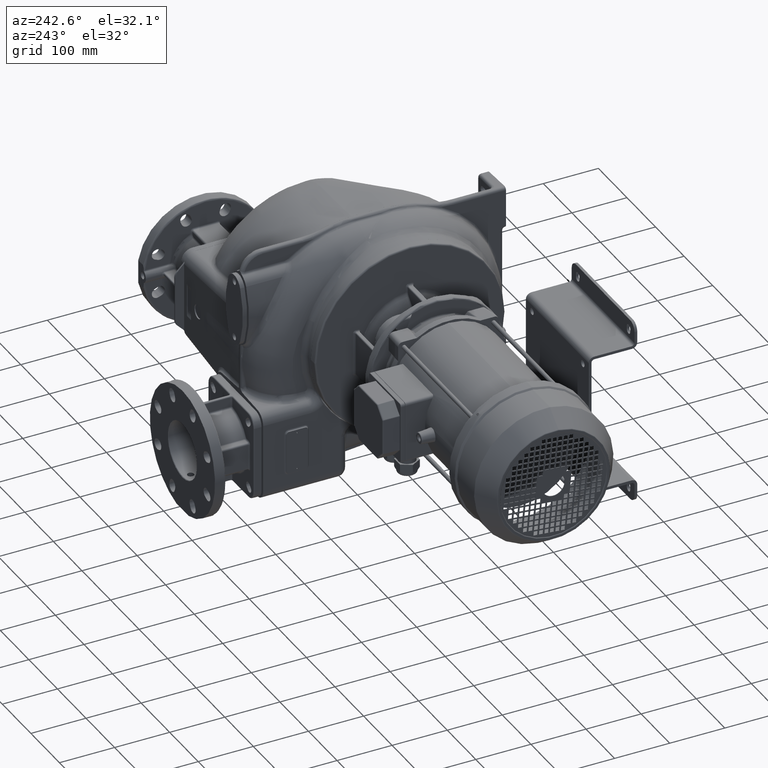
[diagram: clean part render]
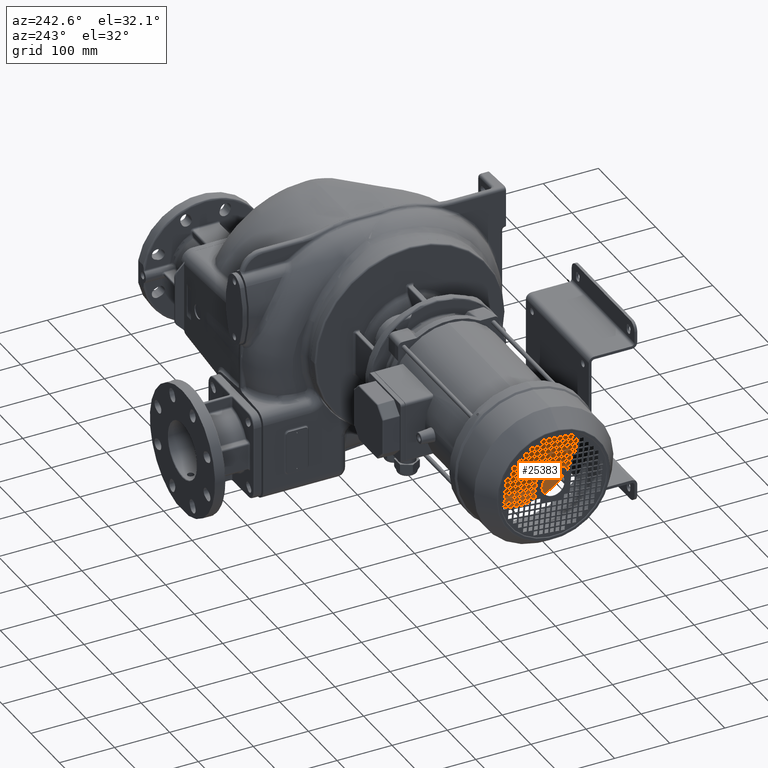
[diagram: same view with one face highlighted and labeled with its STEP entity id]
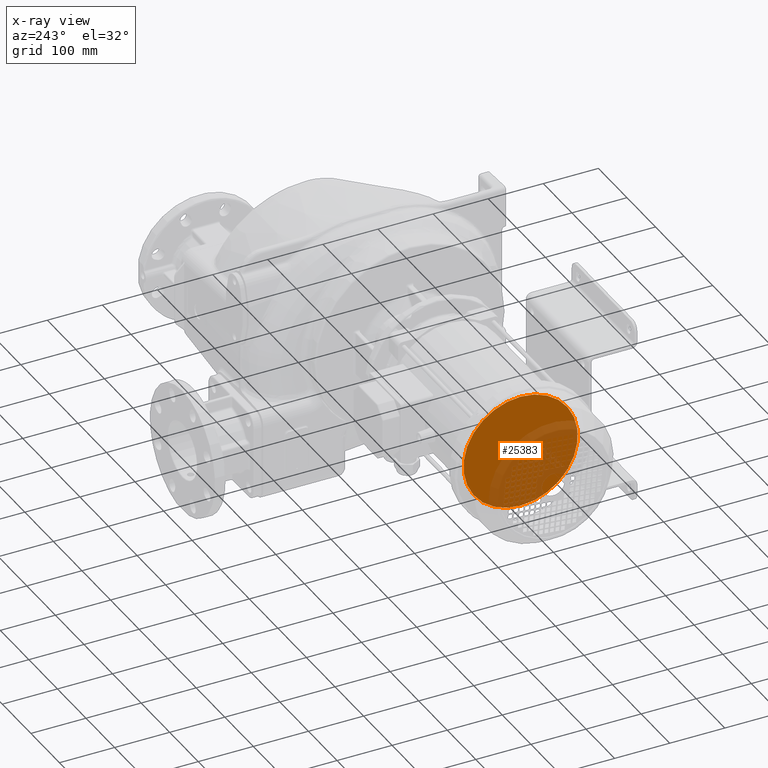
[diagram: x-ray of the same camera — body ghosted, the highlighted face saturated]
A machine part, auxiliary view. The second image highlights one B-rep face of the part: STEP entity #25383.
The next image is the same camera in x-ray: the body ghosted, the highlighted face saturated — about 36% of this face is hidden behind the body in this view.
In plain terms, the highlighted planar face has unit normal (1, 0, 0).
Its self-contained STEP definition (entity closure, byte-faithful):
#2606=CARTESIAN_POINT('',(-5.165E2,2.2E2,-1.9E1));
#2607=DIRECTION('',(-1.E0,0.E0,0.E0));
#2608=DIRECTION('',(0.E0,0.E0,1.E0));
#2609=AXIS2_PLACEMENT_3D('',#2606,#2607,#2608);
#2611=CARTESIAN_POINT('',(-5.165E2,2.2E2,-1.9E1));
#2612=DIRECTION('',(-1.E0,0.E0,0.E0));
#2613=DIRECTION('',(0.E0,0.E0,-1.E0));
#2614=AXIS2_PLACEMENT_3D('',#2611,#2612,#2613);
#22150=CARTESIAN_POINT('',(-5.165E2,2.2E2,8.465E1));
#22151=CARTESIAN_POINT('',(-5.165E2,2.2E2,-1.2265E2));
#22152=VERTEX_POINT('',#22150);
#22153=VERTEX_POINT('',#22151);
#25374=CARTESIAN_POINT('',(-5.165E2,3.485091160538E2,-7.756909185552E0));
#25375=DIRECTION('',(1.E0,0.E0,0.E0));
#25376=DIRECTION('',(0.E0,9.961946980917E-1,8.715574274766E-2));
#25377=AXIS2_PLACEMENT_3D('',#25374,#25375,#25376);
#25378=PLANE('',#25377);
#25379=ORIENTED_EDGE('',*,*,#25326,.F.);
#25380=ORIENTED_EDGE('',*,*,#25368,.F.);
#25381=EDGE_LOOP('',(#25379,#25380));
#25382=FACE_OUTER_BOUND('',#25381,.F.);
#25383=ADVANCED_FACE('',(#25382),#25378,.F.);
#2610=CIRCLE('',#2609,1.0365E2);
#2615=CIRCLE('',#2614,1.0365E2);
#25326=EDGE_CURVE('',#22152,#22153,#2610,.T.);
#25368=EDGE_CURVE('',#22153,#22152,#2615,.T.);